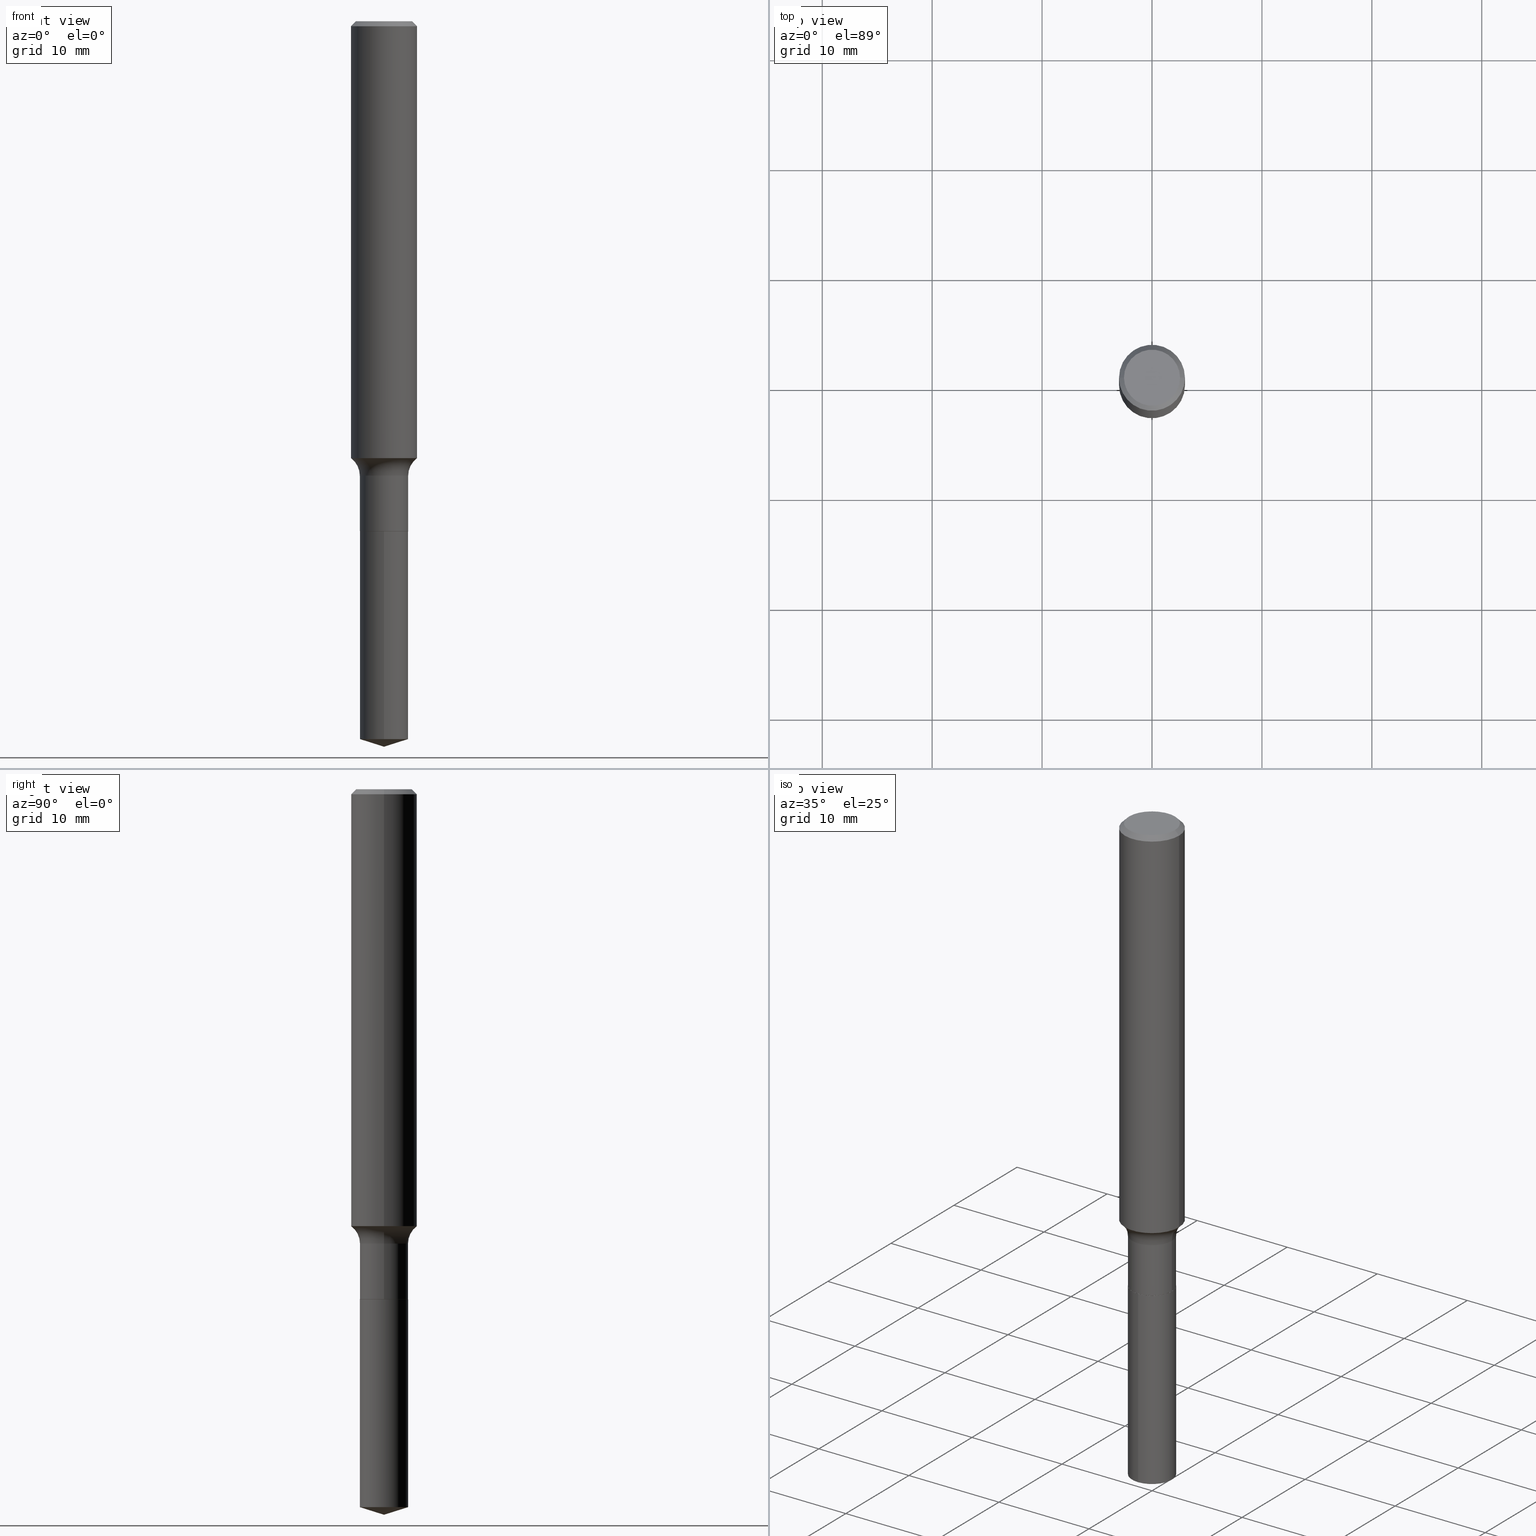
[diagram: canonical four-view strip — front | top / right | iso, engineering-drawing reading convention]
A machine part, canonical four-view strip (front | top / right | iso — engineering-drawing reading convention). The complete STEP part file that produces these views, byte-faithful:
ISO-10303-21;
HEADER;
FILE_DESCRIPTION (( 'STEP AP203' ),
    '1' );
FILE_NAME ('63745.STEP',
    '2024-04-19T15:07:05',
    ( '' ),
    ( '' ),
    'SwSTEP 2.0',
    'SolidWorks 2023',
    '' );
FILE_SCHEMA (( 'CONFIG_CONTROL_DESIGN' ));
ENDSEC;

DATA;
#1 = DIRECTION ( 'NONE',  ( 1.000000000000000000, -6.982962677686270655E-15, 0.000000000000000000 ) ) ;
#2 =( GEOMETRIC_REPRESENTATION_CONTEXT ( 3 ) GLOBAL_UNCERTAINTY_ASSIGNED_CONTEXT ( ( #62 ) ) GLOBAL_UNIT_ASSIGNED_CONTEXT ( ( #191, #229, #417 ) ) REPRESENTATION_CONTEXT ( 'NONE', 'WORKASPACE' ) );
#3 = VECTOR ( 'NONE', #142, 39.37007874015748143 ) ;
#4 = CYLINDRICAL_SURFACE ( 'NONE', #365, 0.08659999999999998255 ) ;
#5 = CC_DESIGN_APPROVAL ( #288, ( #153 ) ) ;
#6 = DIRECTION ( 'NONE',  ( -2.445468806185136597E-29, 3.491481338843145583E-15, 1.000000000000000000 ) ) ;
#7 =( LENGTH_UNIT ( ) NAMED_UNIT ( * ) SI_UNIT ( $, .METRE. ) );
#8 = CC_DESIGN_PERSON_AND_ORGANIZATION_ASSIGNMENT ( #10, #341, ( #50 ) ) ;
#9 = APPROVAL_DATE_TIME ( #378, #354 ) ;
#10 = PERSON_AND_ORGANIZATION ( #374, #277 ) ;
#11 = DATE_AND_TIME ( #279, #83 ) ;
#12 = EDGE_CURVE ( 'NONE', #478, #103, #189, .T. ) ;
#13 = ORIENTED_EDGE ( 'NONE', *, *, #200, .T. ) ;
#14 = COORDINATED_UNIVERSAL_TIME_OFFSET ( 5, 0, .BEHIND. ) ;
#15 = ORIENTED_EDGE ( 'NONE', *, *, #126, .T. ) ;
#16 = SHAPE_DEFINITION_REPRESENTATION ( #389, #76 ) ;
#17 = AXIS2_PLACEMENT_3D ( 'NONE', #300, #264, #484 ) ;
#18 = ADVANCED_FACE ( 'NONE', ( #290 ), #408, .T. ) ;
#19 = VERTEX_POINT ( 'NONE', #361 ) ;
#20 = EDGE_LOOP ( 'NONE', ( #275, #395, #249, #480 ) ) ;
#21 = FACE_OUTER_BOUND ( 'NONE', #287, .T. ) ;
#22 = EDGE_CURVE ( 'NONE', #245, #392, #209, .T. ) ;
#23 = ORIENTED_EDGE ( 'NONE', *, *, #183, .T. ) ;
#24 = AXIS2_PLACEMENT_3D ( 'NONE', #339, #402, #455 ) ;
#25 = CARTESIAN_POINT ( 'NONE',  ( 4.465915133855296004E-29, -6.376143220995352070E-15, -1.826200000000000045 ) ) ;
#26 = AXIS2_PLACEMENT_3D ( 'NONE', #323, #147, #248 ) ;
#27 = VERTEX_POINT ( 'NONE', #184 ) ;
#28 = CYLINDRICAL_SURFACE ( 'NONE', #204, 0.1181000000000000799 ) ;
#29 = FACE_OUTER_BOUND ( 'NONE', #20, .T. ) ;
#30 = VERTEX_POINT ( 'NONE', #251 ) ;
#31 = CC_DESIGN_PERSON_AND_ORGANIZATION_ASSIGNMENT ( #158, #236, ( #307 ) ) ;
#32 = DIRECTION ( 'NONE',  ( -2.445468806185136877E-29, 3.491481338843145188E-15, 1.000000000000000000 ) ) ;
#33 = EDGE_CURVE ( 'NONE', #241, #180, #186, .T. ) ;
#34 = CYLINDRICAL_SURFACE ( 'NONE', #110, 0.08659999999999998255 ) ;
#35 = ORIENTED_EDGE ( 'NONE', *, *, #149, .F. ) ;
#36 = CIRCLE ( 'NONE', #310, 0.08659999999999996867 ) ;
#37 = PLANE ( 'NONE',  #216 ) ;
#38 = LINE ( 'NONE', #457, #244 ) ;
#39 = APPLICATION_CONTEXT ( 'configuration controlled 3d designs of mechanical parts and assemblies' ) ;
#40 = FACE_OUTER_BOUND ( 'NONE', #321, .T. ) ;
#41 = CARTESIAN_POINT ( 'NONE',  ( 4.465915133855296004E-29, -6.376143220995352070E-15, -1.826200000000000045 ) ) ;
#42 = EDGE_CURVE ( 'NONE', #241, #30, #127, .T. ) ;
#43 = DIRECTION ( 'NONE',  ( 1.000000000000000000, -6.982962677686264344E-15, 0.000000000000000000 ) ) ;
#44 = PERSON_AND_ORGANIZATION_ROLE ( 'creator' ) ;
#45 = DIRECTION ( 'NONE',  ( -6.982962677686265922E-15, -1.000000000000000000, 6.309117768277745325E-15 ) ) ;
#46 = LOCAL_TIME ( 11, 7, 5.000000000000000000, #202 ) ;
#47 = CONICAL_SURFACE ( 'NONE', #469, 124.8659371009138965, 1.265363707695889017 ) ;
#48 = CARTESIAN_POINT ( 'NONE',  ( -6.047245678875858606E-16, -0.08660000000000638021, -1.826699999999999768 ) ) ;
#49 = DIRECTION ( 'NONE',  ( 0.000000000000000000, 0.000000000000000000, 1.000000000000000000 ) ) ;
#50 = SECURITY_CLASSIFICATION ( '', '', #468 ) ;
#51 = DATE_AND_TIME ( #462, #486 ) ;
#52 = EDGE_CURVE ( 'NONE', #27, #384, #115, .T. ) ;
#53 = AXIS2_PLACEMENT_3D ( 'NONE', #345, #422, #132 ) ;
#54 = ORIENTED_EDGE ( 'NONE', *, *, #200, .F. ) ;
#55 = AXIS2_PLACEMENT_3D ( 'NONE', #438, #325, #441 ) ;
#56 = ORIENTED_EDGE ( 'NONE', *, *, #451, .T. ) ;
#57 = COORDINATED_UNIVERSAL_TIME_OFFSET ( 5, 0, .BEHIND. ) ;
#58 = EDGE_CURVE ( 'NONE', #241, #400, #355, .T. ) ;
#59 = EDGE_LOOP ( 'NONE', ( #470, #282, #210, #74 ) ) ;
#60 = ORIENTED_EDGE ( 'NONE', *, *, #447, .F. ) ;
#61 = EDGE_LOOP ( 'NONE', ( #178, #431 ) ) ;
#62 = UNCERTAINTY_MEASURE_WITH_UNIT (LENGTH_MEASURE( 1.000000000000000082E-05 ), #191, 'distance_accuracy_value', 'NONE');
#63 = ADVANCED_FACE ( 'NONE', ( #29 ), #258, .T. ) ;
#64 = DIRECTION ( 'NONE',  ( -6.982962677686265922E-15, -1.000000000000000000, 3.154558884138872662E-15 ) ) ;
#65 = ORIENTED_EDGE ( 'NONE', *, *, #92, .T. ) ;
#66 = DIRECTION ( 'NONE',  ( -1.000000000000000000, 6.982962677686266711E-15, 0.000000000000000000 ) ) ;
#67 = CARTESIAN_POINT ( 'NONE',  ( -8.993230961348183354E-28, 1.283757206994410022E-13, 36.77167874015748339 ) ) ;
#68 = ORIENTED_EDGE ( 'NONE', *, *, #84, .F. ) ;
#69 = CIRCLE ( 'NONE', #81, 0.08609999999999996823 ) ;
#70 = AXIS2_PLACEMENT_3D ( 'NONE', #225, #192, #270 ) ;
#71 = FACE_OUTER_BOUND ( 'NONE', #59, .T. ) ;
#72 = ORIENTED_EDGE ( 'NONE', *, *, #52, .T. ) ;
#73 = AXIS2_PLACEMENT_3D ( 'NONE', #108, #151, #156 ) ;
#74 = ORIENTED_EDGE ( 'NONE', *, *, #459, .F. ) ;
#75 = DIRECTION ( 'NONE',  ( -2.445684263508397271E-29, 3.491172791693167047E-15, 1.000000000000000000 ) ) ;
#76 = ADVANCED_BREP_SHAPE_REPRESENTATION ( '63745', ( #262, #101, #301 ), #2 ) ;
#77 = CARTESIAN_POINT ( 'NONE',  ( 4.467137868258388805E-29, -6.377888961664773574E-15, -1.826699999999999990 ) ) ;
#78 = DIRECTION ( 'NONE',  ( -2.445468806185136597E-29, 3.491481338843145583E-15, 1.000000000000000000 ) ) ;
#79 = FACE_OUTER_BOUND ( 'NONE', #315, .T. ) ;
#80 = DIRECTION ( 'NONE',  ( 1.000000000000000000, -6.982962677686267499E-15, 4.876176775795936353E-29 ) ) ;
#81 = AXIS2_PLACEMENT_3D ( 'NONE', #141, #473, #317 ) ;
#82 = DIRECTION ( 'NONE',  ( -2.445468806185136597E-29, 3.491481338843145583E-15, 1.000000000000000000 ) ) ;
#83 = LOCAL_TIME ( 11, 7, 5.000000000000000000, #57 ) ;
#84 = EDGE_CURVE ( 'NONE', #400, #241, #464, .T. ) ;
#85 = FACE_OUTER_BOUND ( 'NONE', #247, .T. ) ;
#86 = CARTESIAN_POINT ( 'NONE',  ( -0.08609999999999996823, -5.766111666175327638E-15, -1.826699999999999990 ) ) ;
#87 = DIRECTION ( 'NONE',  ( -2.445684263508397552E-29, 3.491172791693167047E-15, 1.000000000000000000 ) ) ;
#88 = DIRECTION ( 'NONE',  ( 1.000000000000000000, -6.982962677686264344E-15, 0.000000000000000000 ) ) ;
#89 = CONICAL_SURFACE ( 'NONE', #252, 0.1180999999999999966, 0.7853981633974453924 ) ;
#90 = AXIS2_PLACEMENT_3D ( 'NONE', #286, #434, #215 ) ;
#91 = MECHANICAL_CONTEXT ( 'NONE', #143, 'mechanical' ) ;
#92 = EDGE_CURVE ( 'NONE', #27, #466, #443, .T. ) ;
#93 = DIMENSIONAL_EXPONENTS ( 1.000000000000000000, 0.000000000000000000, 0.000000000000000000, 0.000000000000000000, 0.000000000000000000, 0.000000000000000000, 0.000000000000000000 ) ;
#94 = EDGE_CURVE ( 'NONE', #426, #106, #421, .T. ) ;
#95 = EDGE_LOOP ( 'NONE', ( #68, #13, #280, #309 ) ) ;
#96 = DIRECTION ( 'NONE',  ( -2.445684263508397552E-29, 3.491172791693167047E-15, 1.000000000000000000 ) ) ;
#97 = ORIENTED_EDGE ( 'NONE', *, *, #92, .F. ) ;
#98 = APPROVAL_ROLE ( '' ) ;
#99 = VECTOR ( 'NONE', #96, 39.37007874015748143 ) ;
#100 = ORIENTED_EDGE ( 'NONE', *, *, #170, .F. ) ;
#101 = MANIFOLD_SOLID_BREP ( 'Body-Move/Copy2[2]', #454 ) ;
#102 = CARTESIAN_POINT ( 'NONE',  ( 4.467137868258388805E-29, -6.377888961664773574E-15, -1.826699999999999990 ) ) ;
#103 = VERTEX_POINT ( 'NONE', #350 ) ;
#104 = ADVANCED_FACE ( 'NONE', ( #21 ), #278, .T. ) ;
#105 = ORIENTED_EDGE ( 'NONE', *, *, #22, .F. ) ;
#106 = VERTEX_POINT ( 'NONE', #224 ) ;
#107 = CARTESIAN_POINT ( 'NONE',  ( -0.08659999999999996867, -5.413934540813038672E-15, -1.627499999999999725 ) ) ;
#108 = CARTESIAN_POINT ( 'NONE',  ( 1.002970424325033577E-46, -1.431975951230896486E-32, -4.101342130344485961E-18 ) ) ;
#109 = ORIENTED_EDGE ( 'NONE', *, *, #183, .F. ) ;
#110 = AXIS2_PLACEMENT_3D ( 'NONE', #412, #116, #487 ) ;
#111 = DIRECTION ( 'NONE',  ( 1.000000000000000000, -6.982962677686267499E-15, 0.000000000000000000 ) ) ;
#112 = AXIS2_PLACEMENT_3D ( 'NONE', #450, #266, #45 ) ;
#113 = EDGE_LOOP ( 'NONE', ( #175, #347, #56, #100 ) ) ;
#114 = CARTESIAN_POINT ( 'NONE',  ( 0.000000000000000000, 0.000000000000000000, 0.000000000000000000 ) ) ;
#115 = LINE ( 'NONE', #474, #173 ) ;
#116 = DIRECTION ( 'NONE',  ( -2.445684263508397271E-29, 3.491172791693167047E-15, 1.000000000000000000 ) ) ;
#117 = APPROVAL_STATUS ( 'not_yet_approved' ) ;
#118 = DIRECTION ( 'NONE',  ( -2.445468806185136877E-29, 3.491481338843145188E-15, 1.000000000000000000 ) ) ;
#119 = TOROIDAL_SURFACE ( 'NONE', #416, 0.1645999999999999408, 0.07799999999999999989 ) ;
#120 = CALENDAR_DATE ( 2024, 19, 4 ) ;
#121 = DIRECTION ( 'NONE',  ( -6.982962677686265922E-15, -1.000000000000000000, 3.154558884138872662E-15 ) ) ;
#122 = DIRECTION ( 'NONE',  ( 6.776566513254251038E-15, 0.9537169507482280428, 0.3007057995042697329 ) ) ;
#123 = FACE_OUTER_BOUND ( 'NONE', #349, .T. ) ;
#124 = EDGE_CURVE ( 'NONE', #400, #384, #319, .T. ) ;
#125 = AXIS2_PLACEMENT_3D ( 'NONE', #41, #6, #194 ) ;
#126 = EDGE_CURVE ( 'NONE', #466, #27, #199, .T. ) ;
#127 = CIRCLE ( 'NONE', #55, 0.07799999999999999989 ) ;
#128 = DIRECTION ( 'NONE',  ( 1.000000000000000000, -6.982962677686267499E-15, 4.883557194083112901E-29 ) ) ;
#129 = PRODUCT_RELATED_PRODUCT_CATEGORY ( 'detail', '', ( #307 ) ) ;
#130 = ADVANCED_FACE ( 'NONE', ( #394 ), #47, .T. ) ;
#131 = AXIS2_PLACEMENT_3D ( 'NONE', #448, #413, #490 ) ;
#132 = DIRECTION ( 'NONE',  ( 6.982962677686265922E-15, 1.000000000000000000, -3.491172791693167047E-15 ) ) ;
#133 = ORIENTED_EDGE ( 'NONE', *, *, #12, .F. ) ;
#134 = PRODUCT_DEFINITION ( 'UNKNOWN', '', #153, #424 ) ;
#135 = ORIENTED_EDGE ( 'NONE', *, *, #33, .F. ) ;
#136 = DIRECTION ( 'NONE',  ( 2.445468806185136597E-29, -3.491481338843145583E-15, -1.000000000000000000 ) ) ;
#137 = DIRECTION ( 'NONE',  ( -6.659769872151625778E-15, -0.9537169507482258224, 0.3007057995042763388 ) ) ;
#138 = ADVANCED_FACE ( 'NONE', ( #357 ), #296, .T. ) ;
#139 = ORIENTED_EDGE ( 'NONE', *, *, #58, .F. ) ;
#140 = VECTOR ( 'NONE', #32, 39.37007874015748143 ) ;
#141 = CARTESIAN_POINT ( 'NONE',  ( 4.467137868258388805E-29, -6.377888961664773574E-15, -1.826699999999999990 ) ) ;
#142 = DIRECTION ( 'NONE',  ( -2.445468806185136877E-29, 3.491481338843145188E-15, 1.000000000000000000 ) ) ;
#143 = APPLICATION_CONTEXT ( 'configuration controlled 3d designs of mechanical parts and assemblies' ) ;
#144 = CC_DESIGN_APPROVAL ( #169, ( #50 ) ) ;
#145 = ORIENTED_EDGE ( 'NONE', *, *, #268, .F. ) ;
#146 = DIRECTION ( 'NONE',  ( -2.445468806185136597E-29, 3.491481338843145583E-15, 1.000000000000000000 ) ) ;
#147 = DIRECTION ( 'NONE',  ( -2.445468806185136597E-29, 3.491481338843145583E-15, 1.000000000000000000 ) ) ;
#148 = EDGE_LOOP ( 'NONE', ( #182, #185, #352, #436 ) ) ;
#149 = EDGE_CURVE ( 'NONE', #324, #103, #314, .T. ) ;
#150 = CARTESIAN_POINT ( 'NONE',  ( 0.000000000000000000, 0.000000000000000000, 0.000000000000000000 ) ) ;
#151 = DIRECTION ( 'NONE',  ( -2.445468806185136597E-29, 3.491481338843145583E-15, 1.000000000000000000 ) ) ;
#152 = EDGE_LOOP ( 'NONE', ( #54, #139, #213, #181 ) ) ;
#153 = PRODUCT_DEFINITION_FORMATION_WITH_SPECIFIED_SOURCE ( 'ANY', '', #307, .NOT_KNOWN. ) ;
#154 = DIRECTION ( 'NONE',  ( 1.000000000000000000, -6.982962677686266711E-15, 4.876176775795936353E-29 ) ) ;
#155 = VECTOR ( 'NONE', #137, 39.37007874015748854 ) ;
#156 = DIRECTION ( 'NONE',  ( 1.000000000000000000, -6.982962677686266711E-15, 4.876140833081945105E-29 ) ) ;
#157 = CARTESIAN_POINT ( 'NONE',  ( 6.287693311017304751E-29, -8.976700967925621548E-15, -2.571095124883080008 ) ) ;
#158 = PERSON_AND_ORGANIZATION ( #374, #277 ) ;
#159 = DIRECTION ( 'NONE',  ( -2.445468806185136597E-29, 3.491481338843145583E-15, 1.000000000000000000 ) ) ;
#160 = DATE_AND_TIME ( #491, #432 ) ;
#161 = CARTESIAN_POINT ( 'NONE',  ( 0.000000000000000000, 0.000000000000000000, 0.000000000000000000 ) ) ;
#162 = CIRCLE ( 'NONE', #125, 0.08660000000000001030 ) ;
#163 = DIRECTION ( 'NONE',  ( 2.438088387897960049E-29, -3.491481338843145188E-15, -1.000000000000000000 ) ) ;
#164 = DIRECTION ( 'NONE',  ( 1.000000000000000000, -6.982962677686267499E-15, 4.876176775795936353E-29 ) ) ;
#165 = CARTESIAN_POINT ( 'NONE',  ( 4.332147990156996744E-31, -6.185159191760670395E-17, -0.01771500000000010913 ) ) ;
#166 = EDGE_CURVE ( 'NONE', #466, #180, #198, .T. ) ;
#167 = COORDINATED_UNIVERSAL_TIME_OFFSET ( 5, 0, .BEHIND. ) ;
#168 = CIRCLE ( 'NONE', #172, 0.08609999999999996823 ) ;
#169 = APPROVAL ( #171, 'UNSPECIFIED' ) ;
#170 = EDGE_CURVE ( 'NONE', #106, #426, #162, .T. ) ;
#171 = APPROVAL_STATUS ( 'not_yet_approved' ) ;
#172 = AXIS2_PLACEMENT_3D ( 'NONE', #375, #82, #43 ) ;
#173 = VECTOR ( 'NONE', #401, 39.37007874015748143 ) ;
#174 = EDGE_CURVE ( 'NONE', #19, #106, #261, .T. ) ;
#175 = ORIENTED_EDGE ( 'NONE', *, *, #174, .F. ) ;
#176 = DIRECTION ( 'NONE',  ( 1.000000000000000000, -6.982962677686270655E-15, 0.000000000000000000 ) ) ;
#177 = ADVANCED_FACE ( 'NONE', ( #79 ), #337, .F. ) ;
#178 = ORIENTED_EDGE ( 'NONE', *, *, #437, .T. ) ;
#179 = ORIENTED_EDGE ( 'NONE', *, *, #451, .F. ) ;
#180 = VERTEX_POINT ( 'NONE', #304 ) ;
#181 = ORIENTED_EDGE ( 'NONE', *, *, #390, .T. ) ;
#182 = ORIENTED_EDGE ( 'NONE', *, *, #126, .F. ) ;
#183 = EDGE_CURVE ( 'NONE', #478, #324, #38, .T. ) ;
#184 = CARTESIAN_POINT ( 'NONE',  ( -0.1003850000000000020, 7.319105043583386689E-16, -4.101342130349496461E-18 ) ) ;
#185 = ORIENTED_EDGE ( 'NONE', *, *, #166, .T. ) ;
#186 = LINE ( 'NONE', #292, #140 ) ;
#187 = VECTOR ( 'NONE', #235, 39.37007874015748143 ) ;
#188 = DIRECTION ( 'NONE',  ( -2.438088387897960049E-29, 3.491481338843145188E-15, 1.000000000000000000 ) ) ;
#189 = LINE ( 'NONE', #283, #155 ) ;
#190 = CARTESIAN_POINT ( 'NONE',  ( 0.08609999999999996823, -6.979122048213560702E-15, -1.826699999999999990 ) ) ;
#191 =( CONVERSION_BASED_UNIT ( 'INCH', #410 ) LENGTH_UNIT ( ) NAMED_UNIT ( #93 ) );
#192 = DIRECTION ( 'NONE',  ( 7.105427357601001859E-15, 1.000000000000000000, -3.491481338843145583E-15 ) ) ;
#193 = CARTESIAN_POINT ( 'NONE',  ( 6.153300091682912076E-16, 0.08659999999999359876, -1.826700000000000212 ) ) ;
#194 = DIRECTION ( 'NONE',  ( 1.000000000000000000, -6.982962677686267499E-15, 0.000000000000000000 ) ) ;
#195 = APPROVAL_PERSON_ORGANIZATION ( #197, #354, #367 ) ;
#196 = CYLINDRICAL_SURFACE ( 'NONE', #24, 0.1181000000000000799 ) ;
#197 = PERSON_AND_ORGANIZATION ( #374, #277 ) ;
#198 = LINE ( 'NONE', #411, #376 ) ;
#199 = CIRCLE ( 'NONE', #90, 0.1003850000000000020 ) ;
#200 = EDGE_CURVE ( 'NONE', #400, #318, #380, .T. ) ;
#201 = DIRECTION ( 'NONE',  ( 1.000000000000000000, -6.982962677686265922E-15, 4.876176775795935793E-29 ) ) ;
#202 = COORDINATED_UNIVERSAL_TIME_OFFSET ( 5, 0, .BEHIND. ) ;
#203 = CC_DESIGN_DATE_AND_TIME_ASSIGNMENT ( #273, #344, ( #50 ) ) ;
#204 = AXIS2_PLACEMENT_3D ( 'NONE', #150, #440, #154 ) ;
#205 = ADVANCED_FACE ( 'NONE', ( #232 ), #442, .F. ) ;
#206 = AXIS2_PLACEMENT_3D ( 'NONE', #102, #219, #246 ) ;
#207 = PERSON_AND_ORGANIZATION ( #374, #277 ) ;
#208 = APPROVAL_PERSON_ORGANIZATION ( #333, #288, #449 ) ;
#209 = CIRCLE ( 'NONE', #206, 0.08659999999999998255 ) ;
#210 = ORIENTED_EDGE ( 'NONE', *, *, #33, .T. ) ;
#211 = ADVANCED_FACE ( 'NONE', ( #364 ), #237, .F. ) ;
#212 = ORIENTED_EDGE ( 'NONE', *, *, #12, .T. ) ;
#213 = ORIENTED_EDGE ( 'NONE', *, *, #42, .T. ) ;
#214 = ORIENTED_EDGE ( 'NONE', *, *, #382, .F. ) ;
#215 = DIRECTION ( 'NONE',  ( 1.000000000000000000, -6.982962677686266711E-15, 4.876140833081945105E-29 ) ) ;
#216 = AXIS2_PLACEMENT_3D ( 'NONE', #234, #188, #201 ) ;
#217 = ORIENTED_EDGE ( 'NONE', *, *, #459, .T. ) ;
#218 = AXIS2_PLACEMENT_3D ( 'NONE', #25, #397, #111 ) ;
#219 = DIRECTION ( 'NONE',  ( -2.445684263508397271E-29, 3.491172791693167047E-15, 1.000000000000000000 ) ) ;
#220 = ORIENTED_EDGE ( 'NONE', *, *, #174, .T. ) ;
#221 = ORIENTED_EDGE ( 'NONE', *, *, #170, .T. ) ;
#222 = CC_DESIGN_DATE_AND_TIME_ASSIGNMENT ( #51, #331, ( #134 ) ) ;
#223 = CARTESIAN_POINT ( 'NONE',  ( 0.08609999999999996823, -6.979122048213560702E-15, -1.826699999999999990 ) ) ;
#224 = CARTESIAN_POINT ( 'NONE',  ( -0.08660000000000001030, -5.413934540813038672E-15, -1.826200000000000045 ) ) ;
#225 = CARTESIAN_POINT ( 'NONE',  ( -0.1645999999999999408, -4.512832535906094259E-15, -1.627499999999999725 ) ) ;
#226 = EDGE_CURVE ( 'NONE', #103, #392, #240, .T. ) ;
#227 = CARTESIAN_POINT ( 'NONE',  ( 0.1003850000000000020, -7.803837484803598359E-16, -4.101342130339306751E-18 ) ) ;
#228 = CLOSED_SHELL ( 'NONE', ( #63, #130, #104, #346, #211 ) ) ;
#229 =( NAMED_UNIT ( * ) PLANE_ANGLE_UNIT ( ) SI_UNIT ( $, .RADIAN. ) );
#230 = CARTESIAN_POINT ( 'NONE',  ( 6.354865990300218444E-29, -9.071463381935524932E-15, -2.598399999999999821 ) ) ;
#231 = LINE ( 'NONE', #193, #272 ) ;
#232 = FACE_OUTER_BOUND ( 'NONE', #95, .T. ) ;
#233 = AXIS2_PLACEMENT_3D ( 'NONE', #77, #260, #121 ) ;
#234 = CARTESIAN_POINT ( 'NONE',  ( 4.467137868258388805E-29, -6.377888961664773574E-15, -1.826699999999999990 ) ) ;
#235 = DIRECTION ( 'NONE',  ( -0.7071067811866441621, 7.493145998870704414E-15, 0.7071067811864508723 ) ) ;
#236 = PERSON_AND_ORGANIZATION_ROLE ( 'design_owner' ) ;
#237 = PLANE ( 'NONE',  #53 ) ;
#238 = APPROVAL_DATE_TIME ( #11, #169 ) ;
#239 = CIRCLE ( 'NONE', #233, 0.08659999999999998255 ) ;
#240 = LINE ( 'NONE', #311, #99 ) ;
#241 = VERTEX_POINT ( 'NONE', #242 ) ;
#242 = CARTESIAN_POINT ( 'NONE',  ( 0.1181000000000001909, -6.288423672468409536E-15, -1.564876122764555344 ) ) ;
#243 = ORIENTED_EDGE ( 'NONE', *, *, #226, .T. ) ;
#244 = VECTOR ( 'NONE', #122, 39.37007874015748854 ) ;
#245 = VERTEX_POINT ( 'NONE', #348 ) ;
#246 = DIRECTION ( 'NONE',  ( -6.982962677686265922E-15, -1.000000000000000000, 3.154558884138872662E-15 ) ) ;
#247 = EDGE_LOOP ( 'NONE', ( #360, #145 ) ) ;
#248 = DIRECTION ( 'NONE',  ( 1.000000000000000000, -6.982962677686264344E-15, 0.000000000000000000 ) ) ;
#249 = ORIENTED_EDGE ( 'NONE', *, *, #437, .F. ) ;
#250 = FACE_OUTER_BOUND ( 'NONE', #148, .T. ) ;
#251 = CARTESIAN_POINT ( 'NONE',  ( 0.08659999999999996867, -6.287110446854849077E-15, -1.627499999999999725 ) ) ;
#252 = AXIS2_PLACEMENT_3D ( 'NONE', #165, #308, #461 ) ;
#253 = ORIENTED_EDGE ( 'NONE', *, *, #94, .T. ) ;
#254 = AXIS2_PLACEMENT_3D ( 'NONE', #259, #435, #88 ) ;
#255 = EDGE_LOOP ( 'NONE', ( #133, #23, #481 ) ) ;
#256 = EDGE_LOOP ( 'NONE', ( #356, #220, #285, #179 ) ) ;
#257 = DIRECTION ( 'NONE',  ( -2.445684263508397271E-29, 3.491172791693167047E-15, 1.000000000000000000 ) ) ;
#258 = CYLINDRICAL_SURFACE ( 'NONE', #387, 0.08659999999999998255 ) ;
#259 = CARTESIAN_POINT ( 'NONE',  ( 4.467137868258388805E-29, -6.377888961664773574E-15, -1.826699999999999990 ) ) ;
#260 = DIRECTION ( 'NONE',  ( -2.445684263508397271E-29, 3.491172791693167047E-15, 1.000000000000000000 ) ) ;
#261 = LINE ( 'NONE', #86, #187 ) ;
#262 = MANIFOLD_SOLID_BREP ( 'Body-Move/Copy2[1]', #228 ) ;
#263 = CONICAL_SURFACE ( 'NONE', #338, 0.1180999999999999966, 0.7853981633974453924 ) ;
#264 = DIRECTION ( 'NONE',  ( -2.445468806185136597E-29, 3.491481338843145583E-15, 1.000000000000000000 ) ) ;
#265 = APPROVAL_DATE_TIME ( #160, #288 ) ;
#266 = DIRECTION ( 'NONE',  ( -2.445684263508397271E-29, 3.491172791693167047E-15, 1.000000000000000000 ) ) ;
#267 = FACE_OUTER_BOUND ( 'NONE', #433, .T. ) ;
#268 = EDGE_CURVE ( 'NONE', #19, #377, #69, .T. ) ;
#269 = PERSON_AND_ORGANIZATION ( #374, #277 ) ;
#270 = DIRECTION ( 'NONE',  ( -1.000000000000000000, 7.105427357600997914E-15, 0.000000000000000000 ) ) ;
#271 = LINE ( 'NONE', #190, #420 ) ;
#272 = VECTOR ( 'NONE', #87, 39.37007874015748143 ) ;
#273 = DATE_AND_TIME ( #343, #368 ) ;
#274 = EDGE_CURVE ( 'NONE', #318, #30, #36, .T. ) ;
#275 = ORIENTED_EDGE ( 'NONE', *, *, #351, .T. ) ;
#276 = AXIS2_PLACEMENT_3D ( 'NONE', #334, #492, #128 ) ;
#277 = ORGANIZATION ( 'UNSPECIFIED', 'UNSPECIFIED', '' ) ;
#278 = CONICAL_SURFACE ( 'NONE', #399, 124.8659371009138965, 1.265363707695889017 ) ;
#279 = CALENDAR_DATE ( 2024, 19, 4 ) ;
#280 = ORIENTED_EDGE ( 'NONE', *, *, #274, .T. ) ;
#281 = PERSON_AND_ORGANIZATION ( #374, #277 ) ;
#282 = ORIENTED_EDGE ( 'NONE', *, *, #84, .T. ) ;
#283 = CARTESIAN_POINT ( 'NONE',  ( 6.354078838515418149E-29, -9.072590628093256983E-15, -2.598399999999999821 ) ) ;
#284 = AXIS2_PLACEMENT_3D ( 'NONE', #114, #362, #80 ) ;
#285 = ORIENTED_EDGE ( 'NONE', *, *, #94, .F. ) ;
#286 = CARTESIAN_POINT ( 'NONE',  ( 1.002970424325033577E-46, -1.431975951230896486E-32, -4.101342130344485961E-18 ) ) ;
#287 = EDGE_LOOP ( 'NONE', ( #109, #212, #35 ) ) ;
#288 = APPROVAL ( #117, 'UNSPECIFIED' ) ;
#289 = DIRECTION ( 'NONE',  ( 1.000000000000000000, -6.982962677686267499E-15, 4.883557194083112901E-29 ) ) ;
#290 = FACE_OUTER_BOUND ( 'NONE', #113, .T. ) ;
#291 = ORIENTED_EDGE ( 'NONE', *, *, #166, .F. ) ;
#292 = CARTESIAN_POINT ( 'NONE',  ( 0.1181000000000000799, -8.246878922347486570E-16, 5.758764772215004644E-30 ) ) ;
#293 = ADVANCED_FACE ( 'NONE', ( #250 ), #263, .T. ) ;
#294 = AXIS2_PLACEMENT_3D ( 'NONE', #404, #163, #407 ) ;
#295 = EDGE_LOOP ( 'NONE', ( #316, #472, #439, #135 ) ) ;
#296 = CONICAL_SURFACE ( 'NONE', #254, 0.08609999999999996823, 0.7853981633975849475 ) ;
#297 = CARTESIAN_POINT ( 'NONE',  ( 0.08660000000000001030, -6.980867788882982994E-15, -1.826200000000000045 ) ) ;
#298 = CARTESIAN_POINT ( 'NONE',  ( -8.993230961348183354E-28, 1.283757206994410022E-13, 36.77167874015748339 ) ) ;
#299 = CARTESIAN_POINT ( 'NONE',  ( 3.980000482066309296E-29, -5.682385878967218942E-15, -1.627499999999999725 ) ) ;
#300 = CARTESIAN_POINT ( 'NONE',  ( 4.332147990156996744E-31, -6.185159191760670395E-17, -0.01771500000000010913 ) ) ;
#301 = AXIS2_PLACEMENT_3D ( 'NONE', #456, #49, #414 ) ;
#302 = ADVANCED_FACE ( 'NONE', ( #430 ), #119, .F. ) ;
#303 = FACE_OUTER_BOUND ( 'NONE', #429, .T. ) ;
#304 = CARTESIAN_POINT ( 'NONE',  ( 0.1180999999999999966, -8.865394841523547570E-16, -0.01771500000000010913 ) ) ;
#305 = CARTESIAN_POINT ( 'NONE',  ( -0.08659999999999998255, 6.153300091682466370E-16, -4.259797788160747406E-30 ) ) ;
#306 = APPLICATION_PROTOCOL_DEFINITION ( 'international standard', 'config_control_design', 1994, #39 ) ;
#307 = PRODUCT ( '63745', '63745', '', ( #91 ) ) ;
#308 = DIRECTION ( 'NONE',  ( 2.445468806185136597E-29, -3.491481338843145583E-15, -1.000000000000000000 ) ) ;
#309 = ORIENTED_EDGE ( 'NONE', *, *, #42, .F. ) ;
#310 = AXIS2_PLACEMENT_3D ( 'NONE', #358, #146, #176 ) ;
#311 = CARTESIAN_POINT ( 'NONE',  ( -6.047245678875858606E-16, -0.08660000000000638021, -1.826699999999999768 ) ) ;
#312 = CC_DESIGN_APPROVAL ( #354, ( #134 ) ) ;
#313 = PERSON_AND_ORGANIZATION_ROLE ( 'creator' ) ;
#314 = CIRCLE ( 'NONE', #112, 0.08659999999999998255 ) ;
#315 = EDGE_LOOP ( 'NONE', ( #65, #15 ) ) ;
#316 = ORIENTED_EDGE ( 'NONE', *, *, #58, .T. ) ;
#317 = DIRECTION ( 'NONE',  ( 1.000000000000000000, -6.982962677686264344E-15, 0.000000000000000000 ) ) ;
#318 = VERTEX_POINT ( 'NONE', #107 ) ;
#319 = LINE ( 'NONE', #477, #3 ) ;
#320 = CIRCLE ( 'NONE', #131, 0.1180999999999999966 ) ;
#321 = EDGE_LOOP ( 'NONE', ( #60, #221, #475, #483 ) ) ;
#322 = CARTESIAN_POINT ( 'NONE',  ( 6.153300091683094500E-16, 0.08659999999999098974, -2.571095124883080452 ) ) ;
#323 = CARTESIAN_POINT ( 'NONE',  ( 4.467137868258388805E-29, -6.377888961664773574E-15, -1.826699999999999990 ) ) ;
#324 = VERTEX_POINT ( 'NONE', #322 ) ;
#325 = DIRECTION ( 'NONE',  ( -6.982962677686266711E-15, -1.000000000000000000, 3.491481338843145583E-15 ) ) ;
#326 = ORIENTED_EDGE ( 'NONE', *, *, #471, .F. ) ;
#327 = ADVANCED_FACE ( 'NONE', ( #71 ), #28, .T. ) ;
#328 = DIRECTION ( 'NONE',  ( 1.000000000000000000, -6.982962677686270655E-15, 0.000000000000000000 ) ) ;
#329 = AXIS2_PLACEMENT_3D ( 'NONE', #363, #359, #328 ) ;
#330 = CYLINDRICAL_SURFACE ( 'NONE', #284, 0.08659999999999998255 ) ;
#331 = DATE_TIME_ROLE ( 'creation_date' ) ;
#332 = LINE ( 'NONE', #452, #386 ) ;
#333 = PERSON_AND_ORGANIZATION ( #374, #277 ) ;
#334 = CARTESIAN_POINT ( 'NONE',  ( 3.980000482066309296E-29, -5.682385878967218942E-15, -1.627499999999999725 ) ) ;
#335 = EDGE_CURVE ( 'NONE', #180, #384, #320, .T. ) ;
#336 = CARTESIAN_POINT ( 'NONE',  ( -0.1181000000000001909, -4.624584809300980709E-15, -1.564876122764555344 ) ) ;
#337 = PLANE ( 'NONE',  #294 ) ;
#338 = AXIS2_PLACEMENT_3D ( 'NONE', #393, #136, #66 ) ;
#339 = CARTESIAN_POINT ( 'NONE',  ( 0.000000000000000000, 0.000000000000000000, 0.000000000000000000 ) ) ;
#340 = AXIS2_PLACEMENT_3D ( 'NONE', #482, #78, #485 ) ;
#341 = PERSON_AND_ORGANIZATION_ROLE ( 'classification_officer' ) ;
#342 = AXIS2_PLACEMENT_3D ( 'NONE', #157, #257, #458 ) ;
#343 = CALENDAR_DATE ( 2024, 19, 4 ) ;
#344 = DATE_TIME_ROLE ( 'classification_date' ) ;
#345 = CARTESIAN_POINT ( 'NONE',  ( 4.467137868258388805E-29, -6.377888961664773574E-15, -1.826699999999999990 ) ) ;
#346 = ADVANCED_FACE ( 'NONE', ( #123 ), #34, .T. ) ;
#347 = ORIENTED_EDGE ( 'NONE', *, *, #268, .T. ) ;
#348 = CARTESIAN_POINT ( 'NONE',  ( 6.153300091683094500E-16, 0.08659999999999358489, -1.826700000000000212 ) ) ;
#349 = EDGE_LOOP ( 'NONE', ( #214, #444, #243, #105 ) ) ;
#350 = CARTESIAN_POINT ( 'NONE',  ( -6.047245678875677168E-16, -0.08660000000000897535, -2.571095124883079119 ) ) ;
#351 = EDGE_CURVE ( 'NONE', #103, #324, #373, .T. ) ;
#352 = ORIENTED_EDGE ( 'NONE', *, *, #335, .T. ) ;
#353 = DIRECTION ( 'NONE',  ( -2.445684263508397271E-29, 3.491172791693167047E-15, 1.000000000000000000 ) ) ;
#354 = APPROVAL ( #460, 'UNSPECIFIED' ) ;
#355 = CIRCLE ( 'NONE', #329, 0.1181000000000001632 ) ;
#356 = ORIENTED_EDGE ( 'NONE', *, *, #371, .T. ) ;
#357 = FACE_OUTER_BOUND ( 'NONE', #256, .T. ) ;
#358 = CARTESIAN_POINT ( 'NONE',  ( 3.980000482066309296E-29, -5.682385878967218942E-15, -1.627499999999999725 ) ) ;
#359 = DIRECTION ( 'NONE',  ( -2.445468806185136597E-29, 3.491481338843145583E-15, 1.000000000000000000 ) ) ;
#360 = ORIENTED_EDGE ( 'NONE', *, *, #371, .F. ) ;
#361 = CARTESIAN_POINT ( 'NONE',  ( -0.08609999999999996823, -5.763462439001217226E-15, -1.826699999999999990 ) ) ;
#362 = DIRECTION ( 'NONE',  ( -2.445468806185136597E-29, 3.491481338843145583E-15, 1.000000000000000000 ) ) ;
#363 = CARTESIAN_POINT ( 'NONE',  ( 3.826855743764662661E-29, -5.463735780233660484E-15, -1.564876122764555344 ) ) ;
#364 = FACE_OUTER_BOUND ( 'NONE', #61, .T. ) ;
#365 = AXIS2_PLACEMENT_3D ( 'NONE', #161, #405, #164 ) ;
#366 = CARTESIAN_POINT ( 'NONE',  ( -0.1180999999999999966, -1.923642715142953961E-15, -0.01771500000000010913 ) ) ;
#367 = APPROVAL_ROLE ( '' ) ;
#368 = LOCAL_TIME ( 11, 7, 5.000000000000000000, #14 ) ;
#369 = DIRECTION ( 'NONE',  ( 0.7071067811866441621, -2.468850131083269169E-15, 0.7071067811864508723 ) ) ;
#370 = DIRECTION ( 'NONE',  ( 0.7071067811865454633, -7.319954787623248157E-15, -0.7071067811865495711 ) ) ;
#371 = EDGE_CURVE ( 'NONE', #377, #19, #168, .T. ) ;
#372 = FACE_OUTER_BOUND ( 'NONE', #295, .T. ) ;
#373 = CIRCLE ( 'NONE', #342, 0.08659999999999998255 ) ;
#374 = PERSON ( 'UNSPECIFIED', 'UNSPECIFIED', 'UNSPECIFIED', ('UNSPECIFIED'), ('UNSPECIFIED'), ('UNSPECIFIED') ) ;
#375 = CARTESIAN_POINT ( 'NONE',  ( 4.467137868258388805E-29, -6.377888961664773574E-15, -1.826699999999999990 ) ) ;
#376 = VECTOR ( 'NONE', #370, 39.37007874015748143 ) ;
#377 = VERTEX_POINT ( 'NONE', #223 ) ;
#378 = DATE_AND_TIME ( #120, #46 ) ;
#379 = CC_DESIGN_PERSON_AND_ORGANIZATION_ASSIGNMENT ( #281, #427, ( #153 ) ) ;
#380 = CIRCLE ( 'NONE', #70, 0.07799999999999999989 ) ;
#381 = DIRECTION ( 'NONE',  ( -6.982962677686266711E-15, -1.000000000000000000, 3.500519750498737170E-15 ) ) ;
#382 = EDGE_CURVE ( 'NONE', #324, #245, #231, .T. ) ;
#383 = CC_DESIGN_SECURITY_CLASSIFICATION ( #50, ( #153 ) ) ;
#384 = VERTEX_POINT ( 'NONE', #366 ) ;
#385 = ORIENTED_EDGE ( 'NONE', *, *, #447, .T. ) ;
#386 = VECTOR ( 'NONE', #409, 39.37007874015748143 ) ;
#387 = AXIS2_PLACEMENT_3D ( 'NONE', #391, #75, #64 ) ;
#388 = ORIENTED_EDGE ( 'NONE', *, *, #390, .F. ) ;
#389 = PRODUCT_DEFINITION_SHAPE ( 'NONE', 'NONE',  #134 ) ;
#390 = EDGE_CURVE ( 'NONE', #30, #318, #463, .T. ) ;
#391 = CARTESIAN_POINT ( 'NONE',  ( 4.467137868258388805E-29, -6.377888961664773574E-15, -1.826699999999999990 ) ) ;
#392 = VERTEX_POINT ( 'NONE', #48 ) ;
#393 = CARTESIAN_POINT ( 'NONE',  ( 4.332147990156996744E-31, -6.185159191760670395E-17, -0.01771500000000010913 ) ) ;
#394 = FACE_OUTER_BOUND ( 'NONE', #255, .T. ) ;
#395 = ORIENTED_EDGE ( 'NONE', *, *, #382, .T. ) ;
#396 = DIRECTION ( 'NONE',  ( -2.445468806185136597E-29, 3.491481338843145583E-15, 1.000000000000000000 ) ) ;
#397 = DIRECTION ( 'NONE',  ( -2.445468806185136597E-29, 3.491481338843145583E-15, 1.000000000000000000 ) ) ;
#398 = VECTOR ( 'NONE', #118, 39.37007874015748143 ) ;
#399 = AXIS2_PLACEMENT_3D ( 'NONE', #298, #446, #403 ) ;
#400 = VERTEX_POINT ( 'NONE', #336 ) ;
#401 = DIRECTION ( 'NONE',  ( -0.7071067811865454633, 2.468850131082235367E-15, -0.7071067811865495711 ) ) ;
#402 = DIRECTION ( 'NONE',  ( -2.445468806185136597E-29, 3.491481338843145583E-15, 1.000000000000000000 ) ) ;
#403 = DIRECTION ( 'NONE',  ( -6.982962677686266711E-15, -1.000000000000000000, 3.500519750498737170E-15 ) ) ;
#404 = CARTESIAN_POINT ( 'NONE',  ( 5.014852121625167883E-47, -7.159879756154482429E-33, -2.050671065172242981E-18 ) ) ;
#405 = DIRECTION ( 'NONE',  ( -2.445468806185136597E-29, 3.491481338843145583E-15, 1.000000000000000000 ) ) ;
#406 = COORDINATED_UNIVERSAL_TIME_OFFSET ( 5, 0, .BEHIND. ) ;
#407 = DIRECTION ( 'NONE',  ( -1.000000000000000000, 6.982962677686265922E-15, -4.876176775795935793E-29 ) ) ;
#408 = CONICAL_SURFACE ( 'NONE', #26, 0.08609999999999996823, 0.7853981633975849475 ) ;
#409 = DIRECTION ( 'NONE',  ( -2.445468806185136877E-29, 3.491481338843145188E-15, 1.000000000000000000 ) ) ;
#410 = LENGTH_MEASURE_WITH_UNIT ( LENGTH_MEASURE( 0.02539999999999999897 ), #7 );
#411 = CARTESIAN_POINT ( 'NONE',  ( 0.1180999999999999966, -8.720764054544245267E-16, -0.01771500000000010913 ) ) ;
#412 = CARTESIAN_POINT ( 'NONE',  ( 4.467137868258388805E-29, -6.377888961664773574E-15, -1.826699999999999990 ) ) ;
#413 = DIRECTION ( 'NONE',  ( -2.445468806185136597E-29, 3.491481338843145583E-15, 1.000000000000000000 ) ) ;
#414 = DIRECTION ( 'NONE',  ( 1.000000000000000000, 0.000000000000000000, 0.000000000000000000 ) ) ;
#415 = ADVANCED_FACE ( 'NONE', ( #85 ), #37, .F. ) ;
#416 = AXIS2_PLACEMENT_3D ( 'NONE', #479, #396, #289 ) ;
#417 =( NAMED_UNIT ( * ) SI_UNIT ( $, .STERADIAN. ) SOLID_ANGLE_UNIT ( ) );
#418 = ADVANCED_FACE ( 'NONE', ( #372 ), #196, .T. ) ;
#419 = PERSON_AND_ORGANIZATION ( #374, #277 ) ;
#420 = VECTOR ( 'NONE', #369, 39.37007874015748143 ) ;
#421 = CIRCLE ( 'NONE', #218, 0.08660000000000001030 ) ;
#422 = DIRECTION ( 'NONE',  ( 2.445684263508396991E-29, -3.491172791693167047E-15, -1.000000000000000000 ) ) ;
#423 = CC_DESIGN_PERSON_AND_ORGANIZATION_ASSIGNMENT ( #419, #313, ( #153 ) ) ;
#424 = DESIGN_CONTEXT ( 'detailed design', #39, 'design' ) ;
#425 = CC_DESIGN_PERSON_AND_ORGANIZATION_ASSIGNMENT ( #269, #44, ( #134 ) ) ;
#426 = VERTEX_POINT ( 'NONE', #297 ) ;
#427 = PERSON_AND_ORGANIZATION_ROLE ( 'design_supplier' ) ;
#428 = ADVANCED_FACE ( 'NONE', ( #40 ), #4, .T. ) ;
#429 = EDGE_LOOP ( 'NONE', ( #253, #385, #388, #326 ) ) ;
#430 = FACE_OUTER_BOUND ( 'NONE', #152, .T. ) ;
#431 = ORIENTED_EDGE ( 'NONE', *, *, #22, .T. ) ;
#432 = LOCAL_TIME ( 11, 7, 5.000000000000000000, #406 ) ;
#433 = EDGE_LOOP ( 'NONE', ( #291, #97, #72, #217 ) ) ;
#434 = DIRECTION ( 'NONE',  ( -2.445468806185136597E-29, 3.491481338843145583E-15, 1.000000000000000000 ) ) ;
#435 = DIRECTION ( 'NONE',  ( -2.445468806185136597E-29, 3.491481338843145583E-15, 1.000000000000000000 ) ) ;
#436 = ORIENTED_EDGE ( 'NONE', *, *, #52, .F. ) ;
#437 = EDGE_CURVE ( 'NONE', #392, #245, #239, .T. ) ;
#438 = CARTESIAN_POINT ( 'NONE',  ( 0.1645999999999999408, -6.831781535714377912E-15, -1.627499999999999725 ) ) ;
#439 = ORIENTED_EDGE ( 'NONE', *, *, #335, .F. ) ;
#440 = DIRECTION ( 'NONE',  ( -2.445468806185136597E-29, 3.491481338843145583E-15, 1.000000000000000000 ) ) ;
#441 = DIRECTION ( 'NONE',  ( 1.000000000000000000, -6.982962677686270655E-15, 0.000000000000000000 ) ) ;
#442 = TOROIDAL_SURFACE ( 'NONE', #276, 0.1645999999999999408, 0.07799999999999999989 ) ;
#443 = CIRCLE ( 'NONE', #73, 0.1003850000000000020 ) ;
#444 = ORIENTED_EDGE ( 'NONE', *, *, #149, .T. ) ;
#445 = LINE ( 'NONE', #305, #398 ) ;
#446 = DIRECTION ( 'NONE',  ( -2.445684263508397271E-29, 3.491172791693167047E-15, 1.000000000000000000 ) ) ;
#447 = EDGE_CURVE ( 'NONE', #106, #318, #445, .T. ) ;
#448 = CARTESIAN_POINT ( 'NONE',  ( 4.332147990156996744E-31, -6.185159191760670395E-17, -0.01771500000000010913 ) ) ;
#449 = APPROVAL_ROLE ( '' ) ;
#450 = CARTESIAN_POINT ( 'NONE',  ( 6.287693311017304751E-29, -8.976700967925621548E-15, -2.571095124883080008 ) ) ;
#451 = EDGE_CURVE ( 'NONE', #377, #426, #271, .T. ) ;
#452 = CARTESIAN_POINT ( 'NONE',  ( 0.08659999999999998255, -6.047245678876306285E-16, 4.222769087839279853E-30 ) ) ;
#453 = APPLICATION_PROTOCOL_DEFINITION ( 'international standard', 'config_control_design', 1994, #143 ) ;
#454 = CLOSED_SHELL ( 'NONE', ( #138, #293, #418, #205, #465, #428, #302, #327, #489, #177, #415, #18 ) ) ;
#455 = DIRECTION ( 'NONE',  ( 1.000000000000000000, -6.982962677686266711E-15, 4.876176775795936353E-29 ) ) ;
#456 = CARTESIAN_POINT ( 'NONE',  ( 0.000000000000000000, 0.000000000000000000, 0.000000000000000000 ) ) ;
#457 = CARTESIAN_POINT ( 'NONE',  ( 6.354872892692213853E-29, -9.071463381935524932E-15, -2.598399999999999821 ) ) ;
#458 = DIRECTION ( 'NONE',  ( -6.982962677686265922E-15, -1.000000000000000000, 6.309117768277745325E-15 ) ) ;
#459 = EDGE_CURVE ( 'NONE', #384, #180, #467, .T. ) ;
#460 = APPROVAL_STATUS ( 'not_yet_approved' ) ;
#461 = DIRECTION ( 'NONE',  ( -1.000000000000000000, 6.982962677686266711E-15, 0.000000000000000000 ) ) ;
#462 = CALENDAR_DATE ( 2024, 19, 4 ) ;
#463 = CIRCLE ( 'NONE', #476, 0.08659999999999996867 ) ;
#464 = CIRCLE ( 'NONE', #340, 0.1181000000000001632 ) ;
#465 = ADVANCED_FACE ( 'NONE', ( #303 ), #330, .T. ) ;
#466 = VERTEX_POINT ( 'NONE', #227 ) ;
#467 = CIRCLE ( 'NONE', #17, 0.1180999999999999966 ) ;
#468 = SECURITY_CLASSIFICATION_LEVEL ( 'unclassified' ) ;
#469 = AXIS2_PLACEMENT_3D ( 'NONE', #67, #353, #381 ) ;
#470 = ORIENTED_EDGE ( 'NONE', *, *, #124, .F. ) ;
#471 = EDGE_CURVE ( 'NONE', #426, #30, #332, .T. ) ;
#472 = ORIENTED_EDGE ( 'NONE', *, *, #124, .T. ) ;
#473 = DIRECTION ( 'NONE',  ( -2.445468806185136597E-29, 3.491481338843145583E-15, 1.000000000000000000 ) ) ;
#474 = CARTESIAN_POINT ( 'NONE',  ( -0.1180999999999999966, 7.628363003171413738E-16, -0.01771500000000010913 ) ) ;
#475 = ORIENTED_EDGE ( 'NONE', *, *, #471, .T. ) ;
#476 = AXIS2_PLACEMENT_3D ( 'NONE', #299, #159, #1 ) ;
#477 = CARTESIAN_POINT ( 'NONE',  ( -0.1181000000000000799, 8.391509709326788873E-16, -5.809262341591047988E-30 ) ) ;
#478 = VERTEX_POINT ( 'NONE', #230 ) ;
#479 = CARTESIAN_POINT ( 'NONE',  ( 3.980000482066309296E-29, -5.682385878967218942E-15, -1.627499999999999725 ) ) ;
#480 = ORIENTED_EDGE ( 'NONE', *, *, #226, .F. ) ;
#481 = ORIENTED_EDGE ( 'NONE', *, *, #351, .F. ) ;
#482 = CARTESIAN_POINT ( 'NONE',  ( 3.826855743764662661E-29, -5.463735780233660484E-15, -1.564876122764555344 ) ) ;
#483 = ORIENTED_EDGE ( 'NONE', *, *, #274, .F. ) ;
#484 = DIRECTION ( 'NONE',  ( 1.000000000000000000, -6.982962677686266711E-15, 0.000000000000000000 ) ) ;
#485 = DIRECTION ( 'NONE',  ( 1.000000000000000000, -6.982962677686270655E-15, 0.000000000000000000 ) ) ;
#486 = LOCAL_TIME ( 11, 7, 5.000000000000000000, #167 ) ;
#487 = DIRECTION ( 'NONE',  ( -6.982962677686265922E-15, -1.000000000000000000, 3.154558884138872662E-15 ) ) ;
#488 = APPROVAL_PERSON_ORGANIZATION ( #207, #169, #98 ) ;
#489 = ADVANCED_FACE ( 'NONE', ( #267 ), #89, .T. ) ;
#490 = DIRECTION ( 'NONE',  ( 1.000000000000000000, -6.982962677686266711E-15, 0.000000000000000000 ) ) ;
#491 = CALENDAR_DATE ( 2024, 19, 4 ) ;
#492 = DIRECTION ( 'NONE',  ( -2.445468806185136597E-29, 3.491481338843145583E-15, 1.000000000000000000 ) ) ;
ENDSEC;
END-ISO-10303-21;
